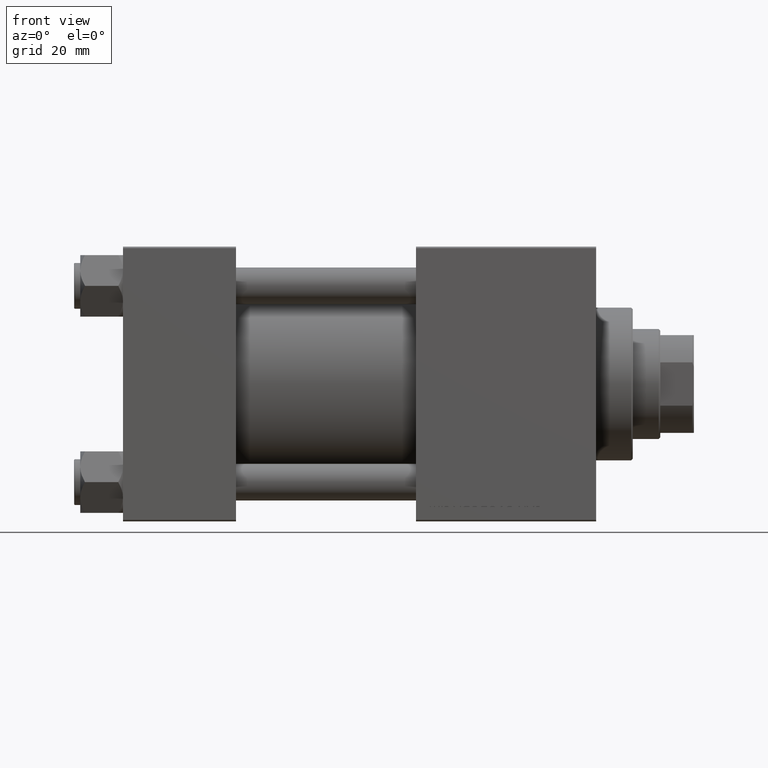
[diagram: clean part render]
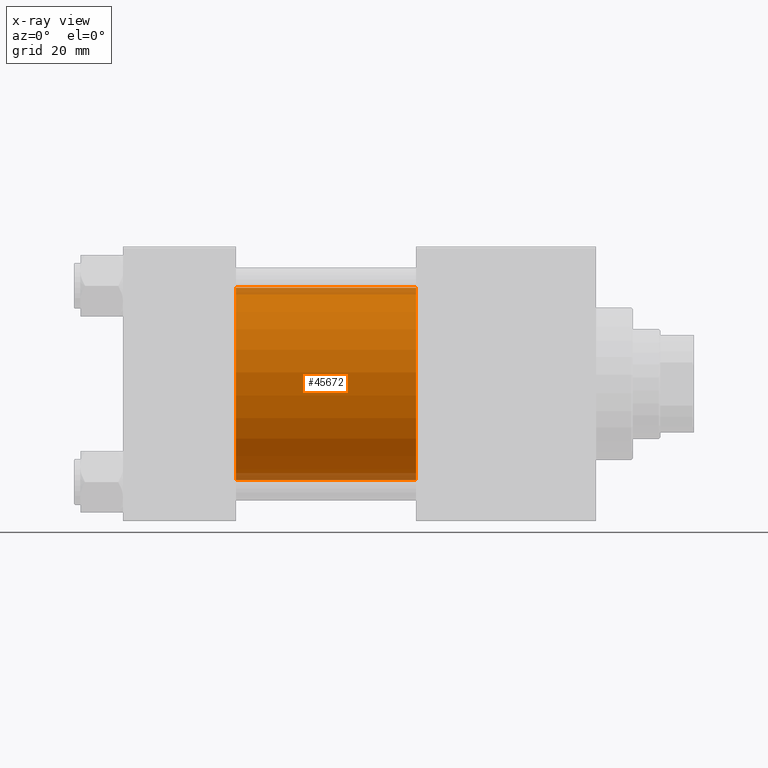
[diagram: x-ray — body ghosted, one internal face saturated and labeled with its STEP entity id]
A machine part, front view, then the same camera in x-ray: the body is ghosted and one INTERNAL B-rep face — a face not visible from any outside direction — is saturated and labeled: STEP entity #45672.
In plain terms, the highlighted cylindrical surface (partial cylindrical patch) has radius 31.5 mm, axis along (-1, -0, -0).
Its self-contained STEP definition (entity closure, byte-faithful):
#983 = VERTEX_POINT ( 'NONE', #14606 ) ;
#3281 = ORIENTED_EDGE ( 'NONE', *, *, #33312, .F. ) ;
#3435 = VECTOR ( 'NONE', #25661, 1000.000000000000000 ) ;
#3705 = EDGE_LOOP ( 'NONE', ( #46910, #7775, #16092, #3281 ) ) ;
#6094 = VERTEX_POINT ( 'NONE', #44292 ) ;
#7775 = ORIENTED_EDGE ( 'NONE', *, *, #32043, .T. ) ;
#8979 = CARTESIAN_POINT ( 'NONE',  ( 96.00000000000000000, 1.255552203348951850E-15, -31.50000000000000000 ) ) ;
#9165 = CARTESIAN_POINT ( 'NONE',  ( 37.00000000000000000, 1.255552203348951850E-15, -31.50000000000000000 ) ) ;
#9316 = CYLINDRICAL_SURFACE ( 'NONE', #13413, 31.50000000000000000 ) ;
#11522 = CARTESIAN_POINT ( 'NONE',  ( 37.00000000000000000, -2.602085213965210642E-15, 0.000000000000000000 ) ) ;
#11692 = CARTESIAN_POINT ( 'NONE',  ( 96.00000000000000000, -2.602085213965210642E-15, 0.000000000000000000 ) ) ;
#12871 = FACE_OUTER_BOUND ( 'NONE', #3705, .T. ) ;
#13413 = AXIS2_PLACEMENT_3D ( 'NONE', #48160, #28364, #43856 ) ;
#14606 = CARTESIAN_POINT ( 'NONE',  ( 96.00000000000000000, -2.602085213965210642E-15, 31.50000000000000000 ) ) ;
#16092 = ORIENTED_EDGE ( 'NONE', *, *, #22186, .F. ) ;
#21224 = VECTOR ( 'NONE', #44258, 1000.000000000000000 ) ;
#21608 = LINE ( 'NONE', #33294, #3435 ) ;
#22186 = EDGE_CURVE ( 'NONE', #6094, #22580, #27378, .T. ) ;
#22580 = VERTEX_POINT ( 'NONE', #9165 ) ;
#23467 = DIRECTION ( 'NONE',  ( 1.000000000000000000, 0.000000000000000000, 0.000000000000000000 ) ) ;
#25661 = DIRECTION ( 'NONE',  ( -1.000000000000000000, -0.000000000000000000, -0.000000000000000000 ) ) ;
#27378 = CIRCLE ( 'NONE', #46802, 31.50000000000000000 ) ;
#27440 = DIRECTION ( 'NONE',  ( 1.000000000000000000, 0.000000000000000000, 0.000000000000000000 ) ) ;
#28199 = DIRECTION ( 'NONE',  ( 0.000000000000000000, 0.000000000000000000, -1.000000000000000000 ) ) ;
#28364 = DIRECTION ( 'NONE',  ( -1.000000000000000000, -0.000000000000000000, -0.000000000000000000 ) ) ;
#32043 = EDGE_CURVE ( 'NONE', #43635, #22580, #40211, .T. ) ;
#32963 = CIRCLE ( 'NONE', #46714, 31.50000000000000000 ) ;
#33294 = CARTESIAN_POINT ( 'NONE',  ( 96.00000000000000000, -2.602085213965210642E-15, 31.50000000000000000 ) ) ;
#33312 = EDGE_CURVE ( 'NONE', #983, #6094, #21608, .T. ) ;
#37318 = CARTESIAN_POINT ( 'NONE',  ( 96.00000000000000000, 1.255552203348951850E-15, -31.50000000000000000 ) ) ;
#40211 = LINE ( 'NONE', #8979, #21224 ) ;
#43635 = VERTEX_POINT ( 'NONE', #37318 ) ;
#43856 = DIRECTION ( 'NONE',  ( 0.000000000000000000, 0.000000000000000000, 1.000000000000000000 ) ) ;
#44258 = DIRECTION ( 'NONE',  ( -1.000000000000000000, -0.000000000000000000, -0.000000000000000000 ) ) ;
#44292 = CARTESIAN_POINT ( 'NONE',  ( 37.00000000000000000, -2.602085213965210642E-15, 31.50000000000000000 ) ) ;
#45672 = ADVANCED_FACE ( 'NONE', ( #12871 ), #9316, .F. ) ;
#46714 = AXIS2_PLACEMENT_3D ( 'NONE', #11692, #27440, #28199 ) ;
#46802 = AXIS2_PLACEMENT_3D ( 'NONE', #11522, #23467, #49880 ) ;
#46910 = ORIENTED_EDGE ( 'NONE', *, *, #48096, .T. ) ;
#48096 = EDGE_CURVE ( 'NONE', #983, #43635, #32963, .T. ) ;
#48160 = CARTESIAN_POINT ( 'NONE',  ( 96.00000000000000000, -2.602085213965210642E-15, 0.000000000000000000 ) ) ;
#49880 = DIRECTION ( 'NONE',  ( 0.000000000000000000, 0.000000000000000000, -1.000000000000000000 ) ) ;